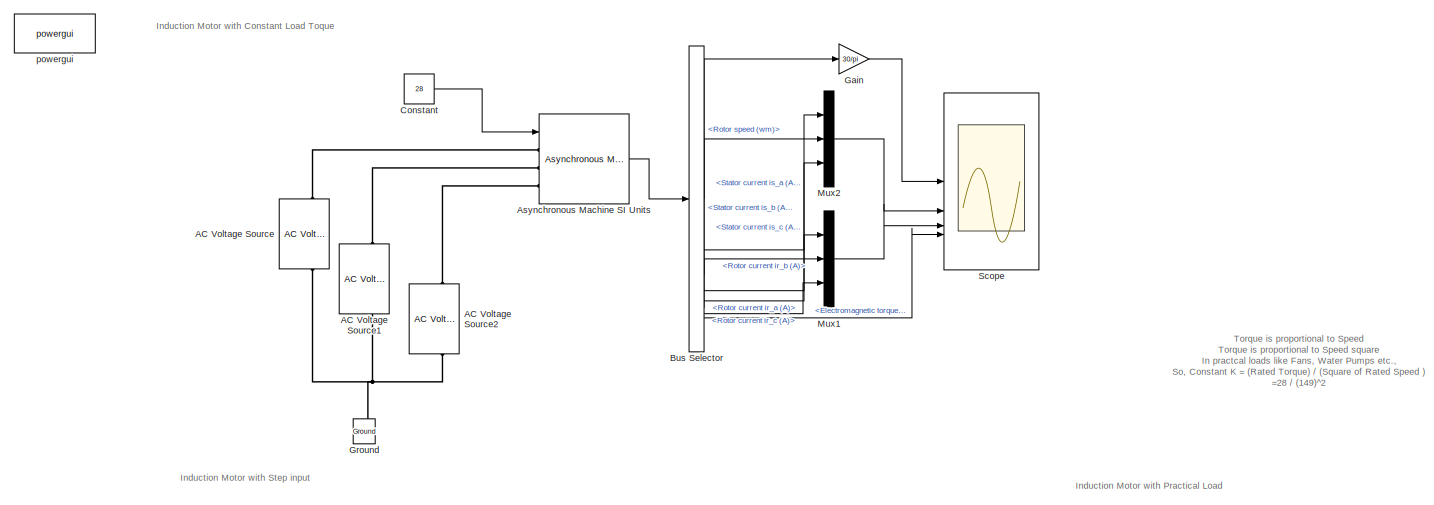
[diagram: root canvas - part 1/3, full width, top band]
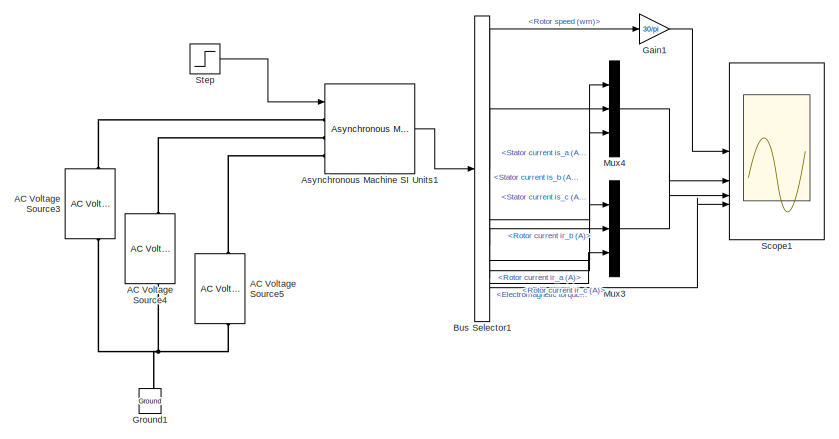
[diagram: root canvas - part 2/3, bottom center region]
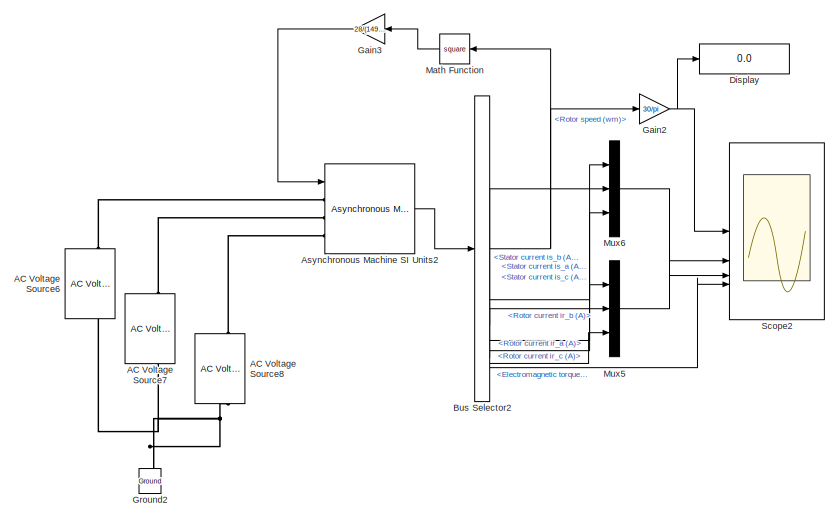
[diagram: root canvas - part 3/3, bottom right region]
MODEL slx_126b68b3675e
KIND model
CONFIG AbsTol = auto
CONFIG EnableMultiTasking = off
CONFIG FixedStep = auto
CONFIG MaxStep = 1e-4
CONFIG MinStep = auto
CONFIG RelTol = 1e-3
CONFIG SampleTimeConstraint = Unconstrained
CONFIG SolverName = ode23tb
CONFIG StartTime = 0.0
CONFIG StopTime = 10.0
BLOCK [Reference] AC Voltage Source  REF=spsACVoltageSourceLib/AC Voltage Source
  LibrarySourceBlock = sps_lib/Sources/AC Voltage Source
  SourceBlock = spsACVoltageSourceLib/AC Voltage Source
  SourceType = AC Voltage Source
BLOCK [Reference] AC Voltage Source1  REF=spsACVoltageSourceLib/AC Voltage Source
  LibrarySourceBlock = sps_lib/Sources/AC Voltage Source
  SourceBlock = spsACVoltageSourceLib/AC Voltage Source
  SourceType = AC Voltage Source
BLOCK [Reference] AC Voltage Source2  REF=spsACVoltageSourceLib/AC Voltage Source
  LibrarySourceBlock = sps_lib/Sources/AC Voltage Source
  SourceBlock = spsACVoltageSourceLib/AC Voltage Source
  SourceType = AC Voltage Source
BLOCK [Reference] AC Voltage Source3  REF=spsACVoltageSourceLib/AC Voltage Source
  LibrarySourceBlock = sps_lib/Sources/AC Voltage Source
  SourceBlock = spsACVoltageSourceLib/AC Voltage Source
  SourceType = AC Voltage Source
BLOCK [Reference] AC Voltage Source4  REF=spsACVoltageSourceLib/AC Voltage Source
  LibrarySourceBlock = sps_lib/Sources/AC Voltage Source
  SourceBlock = spsACVoltageSourceLib/AC Voltage Source
  SourceType = AC Voltage Source
BLOCK [Reference] AC Voltage Source5  REF=spsACVoltageSourceLib/AC Voltage Source
  LibrarySourceBlock = sps_lib/Sources/AC Voltage Source
  SourceBlock = spsACVoltageSourceLib/AC Voltage Source
  SourceType = AC Voltage Source
BLOCK [Reference] AC Voltage Source6  REF=spsACVoltageSourceLib/AC Voltage Source
  LibrarySourceBlock = sps_lib/Sources/AC Voltage Source
  SourceBlock = spsACVoltageSourceLib/AC Voltage Source
  SourceType = AC Voltage Source
BLOCK [Reference] AC Voltage Source7  REF=spsACVoltageSourceLib/AC Voltage Source
  LibrarySourceBlock = sps_lib/Sources/AC Voltage Source
  SourceBlock = spsACVoltageSourceLib/AC Voltage Source
  SourceType = AC Voltage Source
BLOCK [Reference] AC Voltage Source8  REF=spsACVoltageSourceLib/AC Voltage Source
  LibrarySourceBlock = sps_lib/Sources/AC Voltage Source
  SourceBlock = spsACVoltageSourceLib/AC Voltage Source
  SourceType = AC Voltage Source
BLOCK [Reference] Asynchronous Machine SI Units  REF=spsAsynchronousMachineSIUnitsLib/Asynchronous Machine
SI Units
  LibrarySourceBlock = sps_lib/Electrical Machines/Asynchronous Machine\nSI Units
  SourceBlock = spsAsynchronousMachineSIUnitsLib/Asynchronous Machine\nSI Units
  SourceType = Asynchronous Machine
BLOCK [Reference] Asynchronous Machine SI Units1  REF=spsAsynchronousMachineSIUnitsLib/Asynchronous Machine
SI Units
  LibrarySourceBlock = sps_lib/Electrical Machines/Asynchronous Machine\nSI Units
  SourceBlock = spsAsynchronousMachineSIUnitsLib/Asynchronous Machine\nSI Units
  SourceType = Asynchronous Machine
BLOCK [Reference] Asynchronous Machine SI Units2  REF=spsAsynchronousMachineSIUnitsLib/Asynchronous Machine
SI Units
  LibrarySourceBlock = sps_lib/Electrical Machines/Asynchronous Machine\nSI Units
  SourceBlock = spsAsynchronousMachineSIUnitsLib/Asynchronous Machine\nSI Units
  SourceType = Asynchronous Machine
BLOCK [BusSelector] Bus Selector
  OutputSignals = Mechanical.Rotor speed (wm),Stator measurements.Stator current is_a (A),Stator measurements.Stator current is_b (A),Stator measurements.Stator current is_c (A),Rotor measurements.Rotor current ir_a (A),Rotor measurements.Rotor current ir_b (A),Rotor measurements.Rotor current ir_c (A),Mechanical.Electromagnetic torque Te (N*m)  <repeated x3 — deduplicated; at blocks: Bus Selector, Bus Selector1, Bus Selector2>
BLOCK [BusSelector] Bus Selector1
BLOCK [BusSelector] Bus Selector2
BLOCK [Constant] Constant
  Value = 28
BLOCK [Display] Display
  Decimation = 1
BLOCK [Gain] Gain
  Gain = 30/pi
BLOCK [Gain] Gain1
  Gain = 30/pi
BLOCK [Gain] Gain2
  Gain = 30/pi
BLOCK [Gain] Gain3
  Gain = 28/(149)^2
  NameLocation = top
BLOCK [Reference] Ground  REF=spsGroundLib/Ground
  LibrarySourceBlock = sps_lib/Utilities/Ground
  NameLocation = right
  SourceBlock = spsGroundLib/Ground
  SourceType = Ground
BLOCK [Reference] Ground1  REF=spsGroundLib/Ground
  LibrarySourceBlock = sps_lib/Utilities/Ground
  NameLocation = right
  SourceBlock = spsGroundLib/Ground
  SourceType = Ground
BLOCK [Reference] Ground2  REF=spsGroundLib/Ground
  LibrarySourceBlock = sps_lib/Utilities/Ground
  NameLocation = right
  SourceBlock = spsGroundLib/Ground
  SourceType = Ground
BLOCK [Math] Math Function
  NameLocation = top
  Operator = square
BLOCK [Mux] Mux1
  DisplayOption = bar
  Inputs = 3
BLOCK [Mux] Mux2
  DisplayOption = bar
  Inputs = 3
BLOCK [Mux] Mux3
  DisplayOption = bar
  Inputs = 3
BLOCK [Mux] Mux4
  DisplayOption = bar
  Inputs = 3
BLOCK [Mux] Mux5
  DisplayOption = bar
  Inputs = 3
BLOCK [Mux] Mux6
  DisplayOption = bar
  Inputs = 3
BLOCK [Scope] Scope
  Floating = off
  NumInputPorts = 4
  ScopeSpecificationString = Simulink.scopes.TimeScopeBlockCfg('CurrentConfiguration', extmgr.ConfigurationSet(extmgr.Configuration('Core','General UI',true),extmgr.Configuration('Core','Source UI',true),extmgr.Configuration('Sources','WiredSimulink',true),extmgr.Configuration('Visuals','Time Domain',true,'SerializedDisplays',{struct('MinYLimReal','811.09064','MaxYLimReal','1705.65518','YLabelReal','','MinYLimMag','811.09064'...<+3969ch>
BLOCK [Scope] Scope1
  Floating = off
  NumInputPorts = 4
  ScopeSpecificationString = Simulink.scopes.TimeScopeBlockCfg('CurrentConfiguration', extmgr.ConfigurationSet(extmgr.Configuration('Core','General UI',true),extmgr.Configuration('Core','Source UI',true),extmgr.Configuration('Sources','WiredSimulink',true,'DataLoggingVariableName','ScopeData1'),extmgr.Configuration('Visuals','Time Domain',true,'SerializedDisplays',{struct('MinYLimReal','1399.89837','MaxYLimReal','1449.35889',...<+4011ch>
BLOCK [Scope] Scope2
  Floating = off
  NumInputPorts = 4
  ScopeSpecificationString = Simulink.scopes.TimeScopeBlockCfg('CurrentConfiguration', extmgr.ConfigurationSet(extmgr.Configuration('Core','General UI',true),extmgr.Configuration('Core','Source UI',true),extmgr.Configuration('Sources','WiredSimulink',true,'DataLoggingVariableName','ScopeData2'),extmgr.Configuration('Visuals','Time Domain',true,'SerializedDisplays',{struct('MinYLimReal','1430.32858','MaxYLimReal','1430.48668',...<+4012ch>
BLOCK [Step] Step
  After = 28
  SampleTime = 0
  Time = 5
BLOCK [Reference] powergui  REF=sps_lib/powergui
  LibrarySourceBlock = sps_lib/powergui
  Priority = 1
  SourceBlock = sps_lib/powergui
  SourceType = PSB option menu block
ANNOTATION (root): Torque is proportional to Speed Torque is proportional to Speed square In practcal loads like Fans, Water Pumps etc., So, Constant K = (Rated Torque) / (Square of Rated Speed ) =28 / (149)^2
ANNOTATION (root): Induction Motor with Constant Load Toque
ANNOTATION (root): Induction Motor with Practical Load
ANNOTATION (root): Induction Motor with Step input
LINE Asynchronous Machine SI Units1:1 -> Bus Selector1:1
LINE Asynchronous Machine SI Units2:1 -> Bus Selector2:1
LINE Asynchronous Machine SI Units:1 -> Bus Selector:1
LINE Bus Selector1:1 -> Gain1:1
LINE Bus Selector1:2 -> Mux4:1
LINE Bus Selector1:3 -> Mux4:2
LINE Bus Selector1:4 -> Mux4:3
LINE Bus Selector1:5 -> Mux3:1
LINE Bus Selector1:6 -> Mux3:2
LINE Bus Selector1:7 -> Mux3:3
LINE Bus Selector1:8 -> Scope1:4
NET Bus Selector2:1 -> Gain2:1, Math Function:1
LINE Bus Selector2:2 -> Mux6:1
LINE Bus Selector2:3 -> Mux6:2
LINE Bus Selector2:4 -> Mux6:3
LINE Bus Selector2:5 -> Mux5:1
LINE Bus Selector2:6 -> Mux5:2
LINE Bus Selector2:7 -> Mux5:3
LINE Bus Selector2:8 -> Scope2:4
LINE Bus Selector:1 -> Gain:1
LINE Bus Selector:2 -> Mux2:1
LINE Bus Selector:3 -> Mux2:2
LINE Bus Selector:4 -> Mux2:3
LINE Bus Selector:5 -> Mux1:1
LINE Bus Selector:6 -> Mux1:2
LINE Bus Selector:7 -> Mux1:3
LINE Bus Selector:8 -> Scope:4
LINE Constant:1 -> Asynchronous Machine SI Units:1
LINE Gain1:1 -> Scope1:1
NET Gain2:1 -> Display:1, Scope2:1
LINE Gain3:1 -> Asynchronous Machine SI Units2:1
LINE Gain:1 -> Scope:1
LINE Math Function:1 -> Gain3:1
LINE Mux1:1 -> Scope:3
LINE Mux2:1 -> Scope:2
LINE Mux3:1 -> Scope1:3
LINE Mux4:1 -> Scope1:2
LINE Mux5:1 -> Scope2:3
LINE Mux6:1 -> Scope2:2
LINE Step:1 -> Asynchronous Machine SI Units1:1
PNET net1: AC Voltage Source1:LConn1 -- AC Voltage Source2:LConn1 -- AC Voltage Source:LConn1 -- Ground:LConn1
PLINE AC Voltage Source1:RConn1 -- Asynchronous Machine SI Units:LConn2
PLINE AC Voltage Source2:RConn1 -- Asynchronous Machine SI Units:LConn3
PNET net2: AC Voltage Source3:LConn1 -- AC Voltage Source4:LConn1 -- AC Voltage Source5:LConn1 -- Ground1:LConn1
PLINE AC Voltage Source3:RConn1 -- Asynchronous Machine SI Units1:LConn1
PLINE AC Voltage Source4:RConn1 -- Asynchronous Machine SI Units1:LConn2
PLINE AC Voltage Source5:RConn1 -- Asynchronous Machine SI Units1:LConn3
PNET net3: AC Voltage Source6:LConn1 -- AC Voltage Source7:LConn1 -- AC Voltage Source8:LConn1 -- Ground2:LConn1
PLINE AC Voltage Source6:RConn1 -- Asynchronous Machine SI Units2:LConn1
PLINE AC Voltage Source7:RConn1 -- Asynchronous Machine SI Units2:LConn2
PLINE AC Voltage Source8:RConn1 -- Asynchronous Machine SI Units2:LConn3
PLINE AC Voltage Source:RConn1 -- Asynchronous Machine SI Units:LConn1
note: NET lines group one-source signal fan-out (src -> all destinations, sorted); 1:1 wires keep LINE; PNET lines group multi-terminal physical nets as a canonical sorted terminal list (undirected conserving connections); 2-terminal nets keep the pairwise PLINE form
